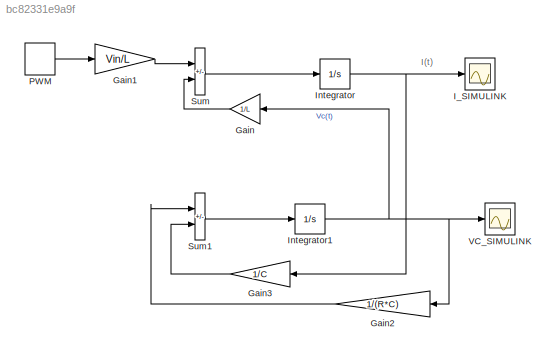
MODEL slx_bc82331e9a9f
KIND model
CONFIG AbsTol = auto
CONFIG EnableMultiTasking = off
CONFIG FixedStep = auto
CONFIG InitFcn = L = 0.002;\nR = 10;\nC = 0.000010;\nVin = 32;\n
CONFIG MaxStep = auto
CONFIG MinStep = auto
CONFIG RelTol = 1e-3
CONFIG SampleTimeConstraint = Unconstrained
CONFIG SolverName = VariableStepAuto
CONFIG StartTime = 0.0
CONFIG StopTime = 0.01
BLOCK [Gain] Gain
  Gain = 1/L
  NameLocation = top
BLOCK [Gain] Gain1
  Gain = Vin/L
BLOCK [Gain] Gain2
  Gain = 1/(R*C)
  NameLocation = top
BLOCK [Gain] Gain3
  Gain = 1/C
  NameLocation = top
BLOCK [Scope] I_SIMULINK
  Floating = off
  NumInputPorts = 1
  ScopeSpecificationString = Simulink.scopes.TimeScopeBlockCfg('CurrentConfiguration', extmgr.ConfigurationSet(extmgr.Configuration('Core','General UI',true),extmgr.Configuration('Core','Source UI',true),extmgr.Configuration('Sources','WiredSimulink',true),extmgr.Configuration('Visuals','Time Domain',true,'SerializedDisplays',{struct('MinYLimReal','-0.20619','MaxYLimReal','1.85567','YLabelReal','','MinYLimMag','0.00000','MaxY...<+1449ch>
BLOCK [Integrator] Integrator
BLOCK [Integrator] Integrator1
BLOCK [DiscretePulseGenerator] PWM
  Amplitude = 0.955
  Period = 1e-5
  PulseType = Time based
  PulseWidth = 50
BLOCK [Sum] Sum
  IconShape = rectangular
  Inputs = +-
BLOCK [Sum] Sum1
  IconShape = rectangular
  Inputs = -+
BLOCK [Scope] VC_SIMULINK
  Floating = off
  NumInputPorts = 1
  ScopeSpecificationString = Simulink.scopes.TimeScopeBlockCfg('CurrentConfiguration', extmgr.ConfigurationSet(extmgr.Configuration('Core','General UI',true),extmgr.Configuration('Core','Source UI',true),extmgr.Configuration('Sources','WiredSimulink',true,'DataLoggingVariableName','ScopeData1'),extmgr.Configuration('Visuals','Time Domain',true,'SerializedDisplays',{struct('MinYLimReal','-1.99256','MaxYLimReal','17.933','YLabe...<+1523ch>
ANNOTATION (root): I(t)
LINE Gain1:1 -> Sum:1
LINE Gain2:1 -> Sum1:1
LINE Gain3:1 -> Sum1:2
LINE Gain:1 -> Sum:2
NET Integrator1:1 -> Gain2:1, Gain:1, VC_SIMULINK:1
NET Integrator:1 -> Gain3:1, I_SIMULINK:1
LINE PWM:1 -> Gain1:1
LINE Sum1:1 -> Integrator1:1
LINE Sum:1 -> Integrator:1
note: NET lines group one-source signal fan-out (src -> all destinations, sorted); 1:1 wires keep LINE
